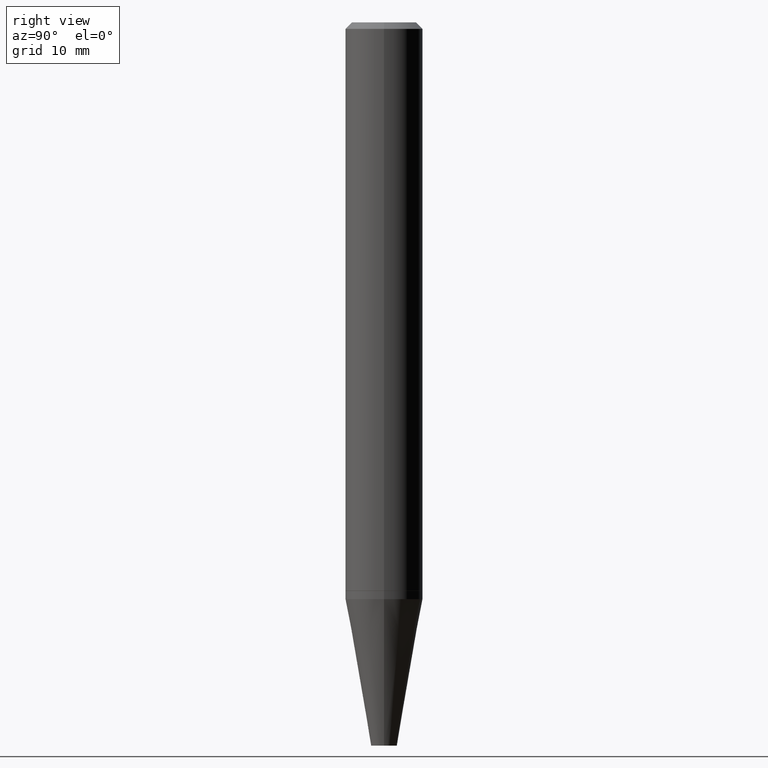
[diagram: clean part render]
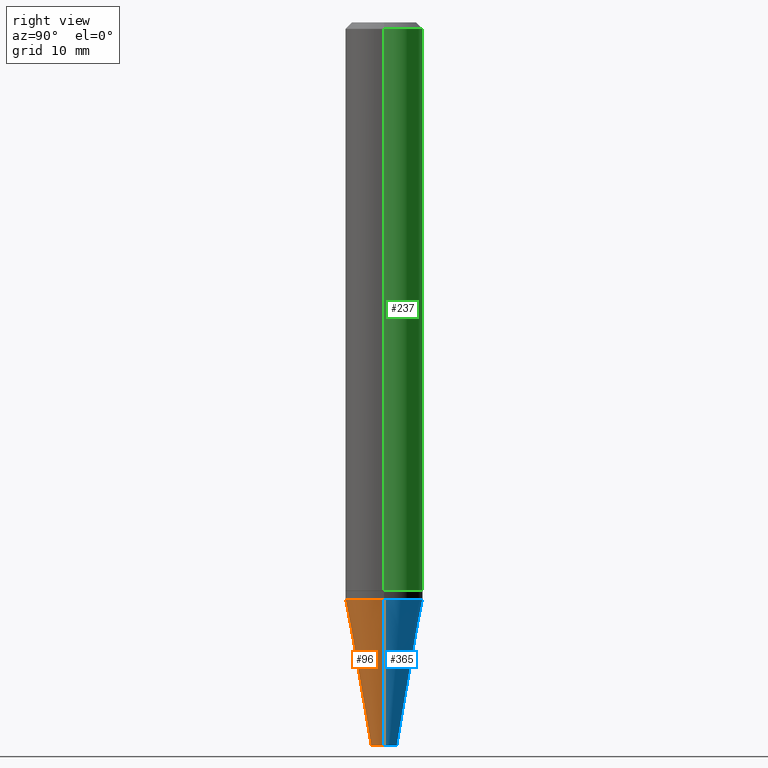
[diagram: same view with three faces highlighted in distinct colors, each labeled with its STEP entity id]
A machine part, right view with three faces highlighted in distinct colors.
Their STEP definitions:

[orange] entity #96 — the highlighted conical surface has half-angle 10 deg.
#8 = CARTESIAN_POINT ( 'NONE',  ( 8.559140821647976968E-29, -1.222018468595100934E-14, -3.500000000000000000 ) ) ;
#13 = AXIS2_PLACEMENT_3D ( 'NONE', #8, #190, #187 ) ;
#31 = AXIS2_PLACEMENT_3D ( 'NONE', #165, #256, #261 ) ;
#34 = LINE ( 'NONE', #325, #302 ) ;
#40 = EDGE_CURVE ( 'NONE', #293, #352, #127, .T. ) ;
#43 = CARTESIAN_POINT ( 'NONE',  ( 0.1875000000000000278, -1.105434335795262656E-14, -2.791089772547757253 ) ) ;
#54 = EDGE_CURVE ( 'NONE', #65, #252, #34, .T. ) ;
#65 = VERTEX_POINT ( 'NONE', #385 ) ;
#96 = ADVANCED_FACE ( 'NONE', ( #290 ), #201, .T. ) ;
#97 = ORIENTED_EDGE ( 'NONE', *, *, #282, .F. ) ;
#114 = CARTESIAN_POINT ( 'NONE',  ( -0.06250000000000005551, -1.009443285121860521E-14, -3.500000000000000000 ) ) ;
#127 = LINE ( 'NONE', #180, #229 ) ;
#156 = DIRECTION ( 'NONE',  ( 1.000000000000000000, -6.982962677686256455E-15, 0.000000000000000000 ) ) ;
#157 = ORIENTED_EDGE ( 'NONE', *, *, #218, .T. ) ;
#160 = ORIENTED_EDGE ( 'NONE', *, *, #54, .T. ) ;
#165 = CARTESIAN_POINT ( 'NONE',  ( 6.825522974027907843E-29, -9.745037855886453130E-15, -2.791089772547757253 ) ) ;
#177 = CARTESIAN_POINT ( 'NONE',  ( -0.1875000000000000278, -8.412770226336266860E-15, -2.791089772547757253 ) ) ;
#180 = CARTESIAN_POINT ( 'NONE',  ( -0.06250000000000005551, -1.177609547610094673E-14, -3.500000000000000000 ) ) ;
#187 = DIRECTION ( 'NONE',  ( 1.000000000000000000, -6.982962677686256455E-15, 0.000000000000000000 ) ) ;
#188 = DIRECTION ( 'NONE',  ( -0.1736481776669234200, 4.672282404182295014E-15, 0.9848077530122092416 ) ) ;
#190 = DIRECTION ( 'NONE',  ( -2.445468806185136597E-29, 3.491481338843145583E-15, 1.000000000000000000 ) ) ;
#201 = CONICAL_SURFACE ( 'NONE', #279, 0.06250000000000005551, 0.1745329251994259256 ) ;
#218 = EDGE_CURVE ( 'NONE', #293, #65, #370, .T. ) ;
#229 = VECTOR ( 'NONE', #188, 39.37007874015748143 ) ;
#245 = DIRECTION ( 'NONE',  ( 0.1736481776669234200, 2.225859148293818106E-15, 0.9848077530122092416 ) ) ;
#252 = VERTEX_POINT ( 'NONE', #43 ) ;
#256 = DIRECTION ( 'NONE',  ( -2.445468806185136597E-29, 3.491481338843145583E-15, 1.000000000000000000 ) ) ;
#261 = DIRECTION ( 'NONE',  ( 1.000000000000000000, -6.982962677686261189E-15, 0.000000000000000000 ) ) ;
#279 = AXIS2_PLACEMENT_3D ( 'NONE', #414, #354, #156 ) ;
#282 = EDGE_CURVE ( 'NONE', #352, #252, #313, .T. ) ;
#290 = FACE_OUTER_BOUND ( 'NONE', #318, .T. ) ;
#293 = VERTEX_POINT ( 'NONE', #114 ) ;
#299 = ORIENTED_EDGE ( 'NONE', *, *, #40, .F. ) ;
#302 = VECTOR ( 'NONE', #245, 39.37007874015748143 ) ;
#313 = CIRCLE ( 'NONE', #31, 0.1875000000000000278 ) ;
#318 = EDGE_LOOP ( 'NONE', ( #299, #157, #160, #97 ) ) ;
#325 = CARTESIAN_POINT ( 'NONE',  ( 0.06250000000000005551, -1.265661985330639943E-14, -3.500000000000000000 ) ) ;
#352 = VERTEX_POINT ( 'NONE', #177 ) ;
#354 = DIRECTION ( 'NONE',  ( -2.445468806185136597E-29, 3.491481338843145583E-15, 1.000000000000000000 ) ) ;
#370 = CIRCLE ( 'NONE', #13, 0.06250000000000005551 ) ;
#385 = CARTESIAN_POINT ( 'NONE',  ( 0.06250000000000005551, -1.265661985330639943E-14, -3.500000000000000000 ) ) ;
#414 = CARTESIAN_POINT ( 'NONE',  ( 8.559140821647976968E-29, -1.222018468595100934E-14, -3.500000000000000000 ) ) ;

[blue] entity #365 — the highlighted conical surface has half-angle 10 deg.
#4 = DIRECTION ( 'NONE',  ( 1.000000000000000000, -6.982962677686261189E-15, 0.000000000000000000 ) ) ;
#17 = DIRECTION ( 'NONE',  ( 1.000000000000000000, -6.982962677686256455E-15, 0.000000000000000000 ) ) ;
#30 = ORIENTED_EDGE ( 'NONE', *, *, #40, .T. ) ;
#34 = LINE ( 'NONE', #325, #302 ) ;
#37 = CONICAL_SURFACE ( 'NONE', #93, 0.06250000000000005551, 0.1745329251994259256 ) ;
#40 = EDGE_CURVE ( 'NONE', #293, #352, #127, .T. ) ;
#43 = CARTESIAN_POINT ( 'NONE',  ( 0.1875000000000000278, -1.105434335795262656E-14, -2.791089772547757253 ) ) ;
#49 = ORIENTED_EDGE ( 'NONE', *, *, #250, .F. ) ;
#54 = EDGE_CURVE ( 'NONE', #65, #252, #34, .T. ) ;
#65 = VERTEX_POINT ( 'NONE', #385 ) ;
#86 = DIRECTION ( 'NONE',  ( -2.445468806185136597E-29, 3.491481338843145583E-15, 1.000000000000000000 ) ) ;
#93 = AXIS2_PLACEMENT_3D ( 'NONE', #349, #86, #240 ) ;
#102 = CIRCLE ( 'NONE', #353, 0.1875000000000000278 ) ;
#114 = CARTESIAN_POINT ( 'NONE',  ( -0.06250000000000005551, -1.009443285121860521E-14, -3.500000000000000000 ) ) ;
#127 = LINE ( 'NONE', #180, #229 ) ;
#168 = CIRCLE ( 'NONE', #407, 0.06250000000000005551 ) ;
#174 = EDGE_CURVE ( 'NONE', #65, #293, #168, .T. ) ;
#177 = CARTESIAN_POINT ( 'NONE',  ( -0.1875000000000000278, -8.412770226336266860E-15, -2.791089772547757253 ) ) ;
#180 = CARTESIAN_POINT ( 'NONE',  ( -0.06250000000000005551, -1.177609547610094673E-14, -3.500000000000000000 ) ) ;
#188 = DIRECTION ( 'NONE',  ( -0.1736481776669234200, 4.672282404182295014E-15, 0.9848077530122092416 ) ) ;
#228 = CARTESIAN_POINT ( 'NONE',  ( 6.825522974027907843E-29, -9.745037855886453130E-15, -2.791089772547757253 ) ) ;
#229 = VECTOR ( 'NONE', #188, 39.37007874015748143 ) ;
#240 = DIRECTION ( 'NONE',  ( 1.000000000000000000, -6.982962677686256455E-15, 0.000000000000000000 ) ) ;
#245 = DIRECTION ( 'NONE',  ( 0.1736481776669234200, 2.225859148293818106E-15, 0.9848077530122092416 ) ) ;
#250 = EDGE_CURVE ( 'NONE', #252, #352, #102, .T. ) ;
#252 = VERTEX_POINT ( 'NONE', #43 ) ;
#267 = ORIENTED_EDGE ( 'NONE', *, *, #54, .F. ) ;
#293 = VERTEX_POINT ( 'NONE', #114 ) ;
#302 = VECTOR ( 'NONE', #245, 39.37007874015748143 ) ;
#311 = CARTESIAN_POINT ( 'NONE',  ( 8.559140821647976968E-29, -1.222018468595100934E-14, -3.500000000000000000 ) ) ;
#314 = DIRECTION ( 'NONE',  ( -2.445468806185136597E-29, 3.491481338843145583E-15, 1.000000000000000000 ) ) ;
#325 = CARTESIAN_POINT ( 'NONE',  ( 0.06250000000000005551, -1.265661985330639943E-14, -3.500000000000000000 ) ) ;
#328 = DIRECTION ( 'NONE',  ( -2.445468806185136597E-29, 3.491481338843145583E-15, 1.000000000000000000 ) ) ;
#346 = FACE_OUTER_BOUND ( 'NONE', #355, .T. ) ;
#349 = CARTESIAN_POINT ( 'NONE',  ( 8.559140821647976968E-29, -1.222018468595100934E-14, -3.500000000000000000 ) ) ;
#352 = VERTEX_POINT ( 'NONE', #177 ) ;
#353 = AXIS2_PLACEMENT_3D ( 'NONE', #228, #328, #4 ) ;
#355 = EDGE_LOOP ( 'NONE', ( #401, #30, #49, #267 ) ) ;
#365 = ADVANCED_FACE ( 'NONE', ( #346 ), #37, .T. ) ;
#385 = CARTESIAN_POINT ( 'NONE',  ( 0.06250000000000005551, -1.265661985330639943E-14, -3.500000000000000000 ) ) ;
#401 = ORIENTED_EDGE ( 'NONE', *, *, #174, .T. ) ;
#407 = AXIS2_PLACEMENT_3D ( 'NONE', #311, #314, #17 ) ;

[green] entity #237 — the highlighted cylindrical surface (partial cylindrical patch) has radius 4.7625 mm, axis along (-0, 0, 1).
#6 = VECTOR ( 'NONE', #36, 39.37007874015748143 ) ;
#10 = VERTEX_POINT ( 'NONE', #388 ) ;
#15 = DIRECTION ( 'NONE',  ( 1.000000000000000000, -6.982962677686269077E-15, 0.000000000000000000 ) ) ;
#36 = DIRECTION ( 'NONE',  ( -2.445468806185136877E-29, 3.491481338843145188E-15, 1.000000000000000000 ) ) ;
#41 = FACE_OUTER_BOUND ( 'NONE', #169, .T. ) ;
#51 = DIRECTION ( 'NONE',  ( -2.445468806185136597E-29, 3.491481338843145583E-15, 1.000000000000000000 ) ) ;
#53 = DIRECTION ( 'NONE',  ( -2.445468806185136597E-29, 3.491481338843145583E-15, 1.000000000000000000 ) ) ;
#57 = CARTESIAN_POINT ( 'NONE',  ( 0.1875000000000000278, -1.418414293905023320E-15, -0.03125000000000003469 ) ) ;
#68 = CIRCLE ( 'NONE', #357, 0.1875000000000000278 ) ;
#70 = CIRCLE ( 'NONE', #163, 0.1875000000000003886 ) ;
#77 = EDGE_CURVE ( 'NONE', #10, #198, #95, .T. ) ;
#79 = ORIENTED_EDGE ( 'NONE', *, *, #77, .F. ) ;
#91 = CARTESIAN_POINT ( 'NONE',  ( -0.1875000000000000278, -3.522200736943847330E-15, -0.03125000000000003469 ) ) ;
#95 = LINE ( 'NONE', #154, #6 ) ;
#99 = LINE ( 'NONE', #219, #133 ) ;
#105 = CARTESIAN_POINT ( 'NONE',  ( 0.000000000000000000, 0.000000000000000000, 0.000000000000000000 ) ) ;
#107 = ORIENTED_EDGE ( 'NONE', *, *, #118, .T. ) ;
#110 = CARTESIAN_POINT ( 'NONE',  ( 7.642090019328561499E-31, -1.091087918388484350E-16, -0.03125000000000003469 ) ) ;
#118 = EDGE_CURVE ( 'NONE', #243, #136, #99, .T. ) ;
#128 = DIRECTION ( 'NONE',  ( 1.000000000000000000, -6.982962677686265922E-15, 4.876176775795935793E-29 ) ) ;
#132 = EDGE_CURVE ( 'NONE', #198, #136, #68, .T. ) ;
#133 = VECTOR ( 'NONE', #356, 39.37007874015748143 ) ;
#136 = VERTEX_POINT ( 'NONE', #91 ) ;
#139 = CARTESIAN_POINT ( 'NONE',  ( 6.723816482606031719E-29, -9.599827941149227567E-15, -2.749499999999999833 ) ) ;
#154 = CARTESIAN_POINT ( 'NONE',  ( 0.1875000000000001943, -1.309305502066176192E-15, 9.142831454617389421E-30 ) ) ;
#163 = AXIS2_PLACEMENT_3D ( 'NONE', #139, #53, #15 ) ;
#167 = CYLINDRICAL_SURFACE ( 'NONE', #413, 0.1875000000000001943 ) ;
#169 = EDGE_LOOP ( 'NONE', ( #298, #107, #287, #79 ) ) ;
#198 = VERTEX_POINT ( 'NONE', #57 ) ;
#219 = CARTESIAN_POINT ( 'NONE',  ( -0.1875000000000001943, 1.332267629550189229E-15, -9.223003294227957800E-30 ) ) ;
#237 = ADVANCED_FACE ( 'NONE', ( #41 ), #167, .T. ) ;
#243 = VERTEX_POINT ( 'NONE', #358 ) ;
#287 = ORIENTED_EDGE ( 'NONE', *, *, #132, .F. ) ;
#298 = ORIENTED_EDGE ( 'NONE', *, *, #405, .T. ) ;
#301 = DIRECTION ( 'NONE',  ( -2.445468806185136597E-29, 3.491481338843145583E-15, 1.000000000000000000 ) ) ;
#307 = DIRECTION ( 'NONE',  ( 1.000000000000000000, -6.982962677686265922E-15, 0.000000000000000000 ) ) ;
#356 = DIRECTION ( 'NONE',  ( -2.445468806185136877E-29, 3.491481338843145188E-15, 1.000000000000000000 ) ) ;
#357 = AXIS2_PLACEMENT_3D ( 'NONE', #110, #51, #307 ) ;
#358 = CARTESIAN_POINT ( 'NONE',  ( -0.1875000000000003886, -8.267560311599038141E-15, -2.749499999999999833 ) ) ;
#388 = CARTESIAN_POINT ( 'NONE',  ( 0.1875000000000003886, -1.090913344321540415E-14, -2.749499999999999833 ) ) ;
#405 = EDGE_CURVE ( 'NONE', #10, #243, #70, .T. ) ;
#413 = AXIS2_PLACEMENT_3D ( 'NONE', #105, #301, #128 ) ;